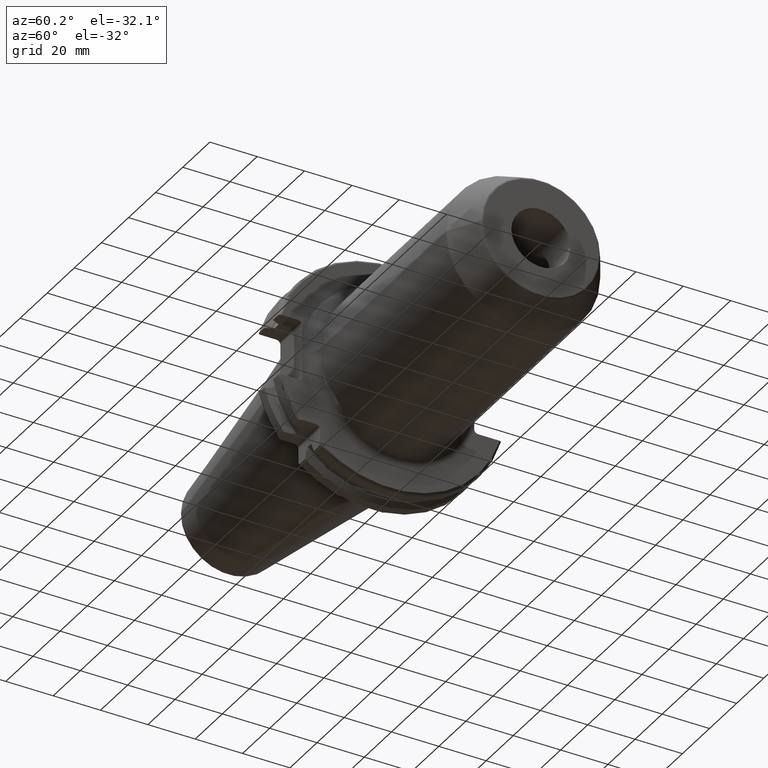
[diagram: clean part render]
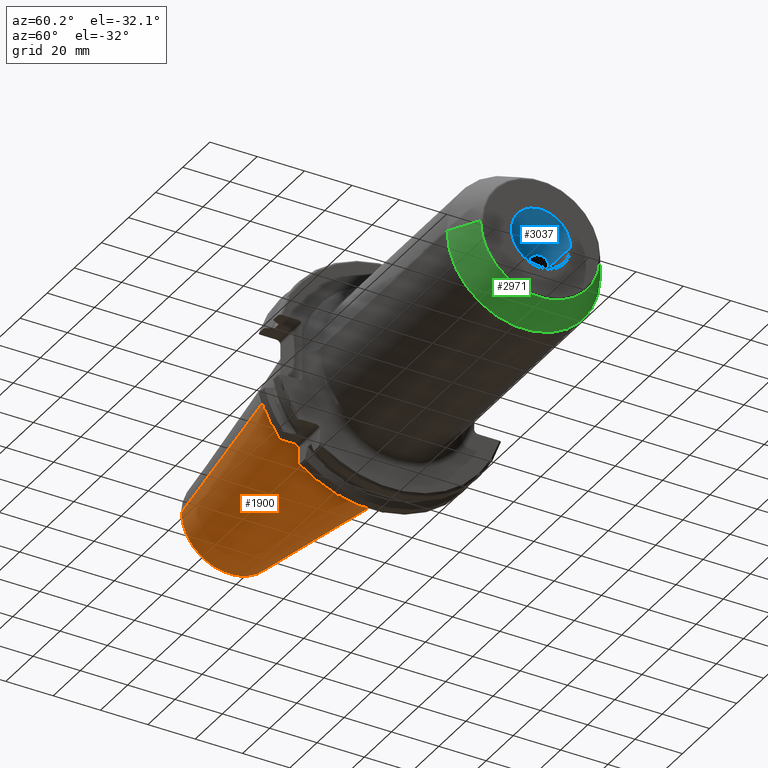
[diagram: same view with three faces highlighted in distinct colors, each labeled with its STEP entity id]
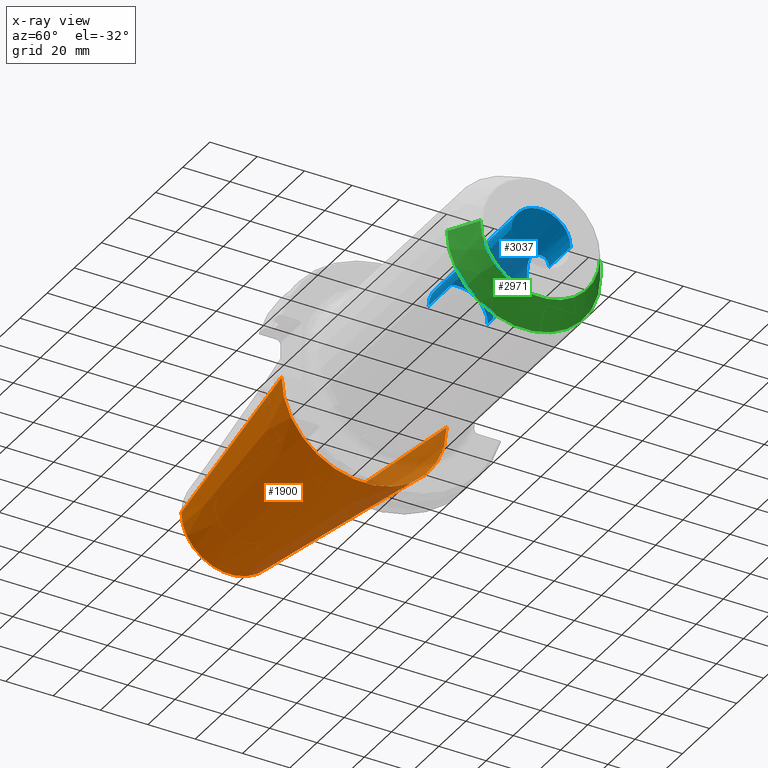
[diagram: x-ray of the same camera — body ghosted, the three highlighted faces saturated]
A machine part, auxiliary view with three faces highlighted in distinct colors.
The next image is the same camera in x-ray (body ghosted, the three faces saturated) — at least one of them is partly hidden behind the body in this view.
Their STEP definitions:

[orange] entity #1900 — the highlighted conical surface has half-angle 8.298 deg.
#32=CARTESIAN_POINT('',(-9.967471700563E1,0.E0,0.E0));
#33=DIRECTION('',(-1.E0,0.E0,0.E0));
#34=DIRECTION('',(0.E0,1.E0,0.E0));
#35=AXIS2_PLACEMENT_3D('',#32,#33,#34);
#47=DIRECTION('',(-9.895312636440E-1,-1.443186691705E-1,0.E0));
#48=VECTOR('',#47,1.002343617797E2);
#49=CARTESIAN_POINT('',(-4.896823332305E-1,3.485358204157E1,0.E0));
#50=LINE('',#49,#48);
#51=DIRECTION('',(-9.895312636440E-1,1.443186691705E-1,0.E0));
#52=VECTOR('',#51,1.002343617797E2);
#53=CARTESIAN_POINT('',(-4.896823332305E-1,-3.485358204157E1,0.E0));
#54=LINE('',#53,#52);
#55=CARTESIAN_POINT('',(-4.896823332305E-1,0.E0,0.E0));
#56=DIRECTION('',(-1.E0,0.E0,0.E0));
#57=DIRECTION('',(0.E0,1.E0,0.E0));
#58=AXIS2_PLACEMENT_3D('',#55,#56,#57);
#1550=CARTESIAN_POINT('',(-9.967471700563E1,2.038789234437E1,0.E0));
#1552=VERTEX_POINT('',#1550);
#1554=CARTESIAN_POINT('',(-9.967471700563E1,-2.038789234437E1,0.E0));
#1556=VERTEX_POINT('',#1554);
#1618=CARTESIAN_POINT('',(-4.896823332305E-1,3.485358204157E1,0.E0));
#1619=VERTEX_POINT('',#1618);
#1620=CARTESIAN_POINT('',(-4.896823332305E-1,-3.485358204157E1,0.E0));
#1621=VERTEX_POINT('',#1620);
#1888=CARTESIAN_POINT('',(-5.008219966943E1,0.E0,0.E0));
#1889=DIRECTION('',(1.E0,0.E0,0.E0));
#1890=DIRECTION('',(0.E0,-1.E0,0.E0));
#1891=AXIS2_PLACEMENT_3D('',#1888,#1889,#1890);
#1892=CONICAL_SURFACE('',#1891,2.762073719297E1,8.297826828206E0);
#1893=ORIENTED_EDGE('',*,*,#1878,.T.);
#1894=ORIENTED_EDGE('',*,*,#1855,.T.);
#1895=ORIENTED_EDGE('',*,*,#1882,.F.);
#1897=ORIENTED_EDGE('',*,*,#1896,.F.);
#1898=EDGE_LOOP('',(#1893,#1894,#1895,#1897));
#1899=FACE_OUTER_BOUND('',#1898,.F.);
#1900=ADVANCED_FACE('',(#1899),#1892,.T.);
#36=CIRCLE('',#35,2.038789234437E1);
#59=CIRCLE('',#58,3.485358204157E1);
#1855=EDGE_CURVE('',#1552,#1556,#36,.T.);
#1878=EDGE_CURVE('',#1619,#1552,#50,.T.);
#1882=EDGE_CURVE('',#1621,#1556,#54,.T.);
#1896=EDGE_CURVE('',#1619,#1621,#59,.T.);

[blue] entity #3037 — the highlighted cylindrical surface (edge-blend (fillet) strip) has radius 12.5 mm, axis along (1, 0, 0).
#1186=CARTESIAN_POINT('',(1.3E2,0.E0,0.E0));
#1187=DIRECTION('',(1.E0,0.E0,0.E0));
#1188=DIRECTION('',(0.E0,1.E0,0.E0));
#1189=AXIS2_PLACEMENT_3D('',#1186,#1187,#1188);
#1206=CARTESIAN_POINT('',(7.3E1,1.25E1,0.E0));
#1207=CARTESIAN_POINT('',(7.3E1,1.25E1,3.615096837713E-1));
#1208=CARTESIAN_POINT('',(7.304857774428E1,1.246881791250E1,1.086151339710E0));
#1209=CARTESIAN_POINT('',(7.327508730613E1,1.232505006200E1,2.177891233022E0));
#1210=CARTESIAN_POINT('',(7.365595029967E1,1.208888164842E1,3.241096397249E0));
#1211=CARTESIAN_POINT('',(7.420665984070E1,1.176059179188E1,4.281345753416E0));
#1212=CARTESIAN_POINT('',(7.493372823787E1,1.135304200667E1,5.264844145148E0));
#1213=CARTESIAN_POINT('',(7.582806891541E1,1.089807727043E1,6.145165584308E0));
#1214=CARTESIAN_POINT('',(7.681553310598E1,1.046251153118E1,6.853424122450E0));
#1215=CARTESIAN_POINT('',(7.786763175698E1,1.008586520363E1,7.390983795789E0));
#1216=CARTESIAN_POINT('',(7.891872872529E1,9.809701879924E0,7.749823513463E0));
#1217=CARTESIAN_POINT('',(7.996695264575E1,9.641526133638E0,7.956107040240E0));
#1218=CARTESIAN_POINT('',(8.100024934777E1,9.586284603744E0,8.021924692966E0));
#1219=CARTESIAN_POINT('',(8.203203640917E1,9.641453588282E0,7.956194187895E0));
#1220=CARTESIAN_POINT('',(8.308061114122E1,9.809541436309E0,7.750023683674E0));
#1221=CARTESIAN_POINT('',(8.413205639329E1,1.008574011951E1,7.391163915452E0));
#1222=CARTESIAN_POINT('',(8.518569741862E1,1.046296239364E1,6.852791566088E0));
#1223=CARTESIAN_POINT('',(8.617379662786E1,1.089898007936E1,6.143554828435E0));
#1224=CARTESIAN_POINT('',(8.706681882641E1,1.135335089933E1,5.264128297059E0));
#1225=CARTESIAN_POINT('',(8.779382355688E1,1.176086842134E1,4.280598253297E0));
#1226=CARTESIAN_POINT('',(8.834439164699E1,1.208909148253E1,3.240332499056E0));
#1227=CARTESIAN_POINT('',(8.872516065153E1,1.232520605344E1,2.176949889592E0));
#1228=CARTESIAN_POINT('',(8.895141397015E1,1.246881316117E1,1.085983622474E0));
#1229=CARTESIAN_POINT('',(8.9E1,1.25E1,3.614640526262E-1));
#1230=CARTESIAN_POINT('',(8.9E1,1.25E1,0.E0));
#1232=CARTESIAN_POINT('',(9.8E1,1.25E1,0.E0));
#1233=CARTESIAN_POINT('',(9.8E1,1.25E1,3.615096837713E-1));
#1234=CARTESIAN_POINT('',(9.804857774428E1,1.246881791250E1,1.086151339710E0));
#1235=CARTESIAN_POINT('',(9.827508730613E1,1.232505006200E1,2.177891233022E0));
#1236=CARTESIAN_POINT('',(9.865595029967E1,1.208888164842E1,3.241096397249E0));
#1237=CARTESIAN_POINT('',(9.920665984070E1,1.176059179188E1,4.281345753416E0));
#1238=CARTESIAN_POINT('',(9.993372823787E1,1.135304200667E1,5.264844145148E0));
#1239=CARTESIAN_POINT('',(1.008280689154E2,1.089807727043E1,6.145165584308E0));
#1240=CARTESIAN_POINT('',(1.018155331060E2,1.046251153118E1,6.853424122450E0));
#1241=CARTESIAN_POINT('',(1.028676317570E2,1.008586520363E1,7.390983795789E0));
#1242=CARTESIAN_POINT('',(1.039187287253E2,9.809701879924E0,7.749823513463E0));
#1243=CARTESIAN_POINT('',(1.049669526457E2,9.641526133638E0,7.956107040240E0));
#1244=CARTESIAN_POINT('',(1.060002493478E2,9.586284603744E0,8.021924692966E0));
#1245=CARTESIAN_POINT('',(1.070320364092E2,9.641453588282E0,7.956194187895E0));
#1246=CARTESIAN_POINT('',(1.080806111412E2,9.809541436309E0,7.750023683674E0));
#1247=CARTESIAN_POINT('',(1.091320563933E2,1.008574011951E1,7.391163915452E0));
#1248=CARTESIAN_POINT('',(1.101856974186E2,1.046296239364E1,6.852791566088E0));
#1249=CARTESIAN_POINT('',(1.111737966279E2,1.089898007936E1,6.143554828435E0));
#1250=CARTESIAN_POINT('',(1.120668188264E2,1.135335089933E1,5.264128297059E0));
#1251=CARTESIAN_POINT('',(1.127938235569E2,1.176086842134E1,4.280598253297E0));
#1252=CARTESIAN_POINT('',(1.133443916470E2,1.208909148253E1,3.240332499056E0));
#1253=CARTESIAN_POINT('',(1.137251606515E2,1.232520605344E1,2.176949889592E0));
#1254=CARTESIAN_POINT('',(1.139514139702E2,1.246881316117E1,1.085983622474E0));
#1255=CARTESIAN_POINT('',(1.14E2,1.25E1,3.614640526262E-1));
#1256=CARTESIAN_POINT('',(1.14E2,1.25E1,0.E0));
#1284=DIRECTION('',(-1.E0,0.E0,0.E0));
#1285=VECTOR('',#1284,9.E0);
#1286=CARTESIAN_POINT('',(9.8E1,1.25E1,0.E0));
#1287=LINE('',#1286,#1285);
#1314=DIRECTION('',(-1.E0,0.E0,0.E0));
#1315=VECTOR('',#1314,1.6E1);
#1316=CARTESIAN_POINT('',(1.3E2,1.25E1,0.E0));
#1317=LINE('',#1316,#1315);
#1318=DIRECTION('',(-1.E0,0.E0,0.E0));
#1319=VECTOR('',#1318,6.11E1);
#1320=CARTESIAN_POINT('',(1.3E2,-1.25E1,0.E0));
#1321=LINE('',#1320,#1319);
#1322=DIRECTION('',(-1.E0,0.E0,0.E0));
#1323=VECTOR('',#1322,4.1E0);
#1324=CARTESIAN_POINT('',(7.3E1,1.25E1,0.E0));
#1325=LINE('',#1324,#1323);
#1339=CARTESIAN_POINT('',(6.89E1,0.E0,0.E0));
#1340=DIRECTION('',(1.E0,0.E0,0.E0));
#1341=DIRECTION('',(0.E0,1.E0,0.E0));
#1342=AXIS2_PLACEMENT_3D('',#1339,#1340,#1341);
#1759=CARTESIAN_POINT('',(6.89E1,1.25E1,0.E0));
#1760=CARTESIAN_POINT('',(6.89E1,-1.25E1,0.E0));
#1761=VERTEX_POINT('',#1759);
#1762=VERTEX_POINT('',#1760);
#1763=CARTESIAN_POINT('',(1.3E2,-1.25E1,0.E0));
#1764=VERTEX_POINT('',#1763);
#1765=CARTESIAN_POINT('',(1.14E2,1.25E1,0.E0));
#1767=VERTEX_POINT('',#1765);
#1769=CARTESIAN_POINT('',(9.8E1,1.25E1,0.E0));
#1771=VERTEX_POINT('',#1769);
#1773=CARTESIAN_POINT('',(1.3E2,1.25E1,0.E0));
#1774=VERTEX_POINT('',#1773);
#1803=VERTEX_POINT('',#1206);
#1804=VERTEX_POINT('',#1230);
#3016=CARTESIAN_POINT('',(6.5845E1,0.E0,0.E0));
#3017=DIRECTION('',(1.E0,0.E0,0.E0));
#3018=DIRECTION('',(0.E0,-1.E0,0.E0));
#3019=AXIS2_PLACEMENT_3D('',#3016,#3017,#3018);
#3020=CYLINDRICAL_SURFACE('',#3019,1.25E1);
#3021=ORIENTED_EDGE('',*,*,#2877,.F.);
#3023=ORIENTED_EDGE('',*,*,#3022,.T.);
#3025=ORIENTED_EDGE('',*,*,#3024,.T.);
#3027=ORIENTED_EDGE('',*,*,#3026,.F.);
#3028=ORIENTED_EDGE('',*,*,#3009,.F.);
#3030=ORIENTED_EDGE('',*,*,#3029,.T.);
#3032=ORIENTED_EDGE('',*,*,#3031,.F.);
#3034=ORIENTED_EDGE('',*,*,#3033,.T.);
#3035=EDGE_LOOP('',(#3021,#3023,#3025,#3027,#3028,#3030,#3032,#3034));
#3036=FACE_OUTER_BOUND('',#3035,.F.);
#3037=ADVANCED_FACE('',(#3036),#3020,.F.);
#1190=CIRCLE('',#1189,1.25E1);
#1231=B_SPLINE_CURVE_WITH_KNOTS('',3,(#1206,#1207,#1208,#1209,#1210,#1211,#1212,
#1213,#1214,#1215,#1216,#1217,#1218,#1219,#1220,#1221,#1222,#1223,#1224,#1225,
#1226,#1227,#1228,#1229,#1230),.UNSPECIFIED.,.F.,.F.,(4,1,1,1,1,1,1,1,1,1,1,1,1,
1,1,1,1,1,1,1,1,1,4),(0.E0,4.545454545455E-2,9.090909090909E-2,
1.363636363636E-1,1.818181818182E-1,2.272727272727E-1,2.727272727273E-1,
3.181818181818E-1,3.636363636364E-1,4.090909090909E-1,4.545454545455E-1,5.E-1,
5.454545454545E-1,5.909090909091E-1,6.363636363636E-1,6.818181818182E-1,
7.272727272727E-1,7.727272727273E-1,8.181818181818E-1,8.636363636364E-1,
9.090909090909E-1,9.545454545455E-1,1.E0),.UNSPECIFIED.);
#1257=B_SPLINE_CURVE_WITH_KNOTS('',3,(#1232,#1233,#1234,#1235,#1236,#1237,#1238,
#1239,#1240,#1241,#1242,#1243,#1244,#1245,#1246,#1247,#1248,#1249,#1250,#1251,
#1252,#1253,#1254,#1255,#1256),.UNSPECIFIED.,.F.,.F.,(4,1,1,1,1,1,1,1,1,1,1,1,1,
1,1,1,1,1,1,1,1,1,4),(0.E0,4.545454545455E-2,9.090909090909E-2,
1.363636363636E-1,1.818181818182E-1,2.272727272727E-1,2.727272727273E-1,
3.181818181818E-1,3.636363636364E-1,4.090909090909E-1,4.545454545455E-1,5.E-1,
5.454545454545E-1,5.909090909091E-1,6.363636363636E-1,6.818181818182E-1,
7.272727272727E-1,7.727272727273E-1,8.181818181818E-1,8.636363636364E-1,
9.090909090909E-1,9.545454545455E-1,1.E0),.UNSPECIFIED.);
#1343=CIRCLE('',#1342,1.25E1);
#2877=EDGE_CURVE('',#1803,#1804,#1231,.T.);
#3009=EDGE_CURVE('',#1774,#1764,#1190,.T.);
#3022=EDGE_CURVE('',#1803,#1761,#1325,.T.);
#3024=EDGE_CURVE('',#1761,#1762,#1343,.T.);
#3026=EDGE_CURVE('',#1764,#1762,#1321,.T.);
#3029=EDGE_CURVE('',#1774,#1767,#1317,.T.);
#3031=EDGE_CURVE('',#1771,#1767,#1257,.T.);
#3033=EDGE_CURVE('',#1771,#1804,#1287,.T.);

[green] entity #2971 — the highlighted conical surface has half-angle 30 deg.
#1158=CARTESIAN_POINT('',(1.172320508076E2,0.E0,0.E0));
#1159=DIRECTION('',(-1.E0,0.E0,0.E0));
#1160=DIRECTION('',(0.E0,1.E0,0.E0));
#1161=AXIS2_PLACEMENT_3D('',#1158,#1159,#1160);
#1163=DIRECTION('',(-8.660254037844E-1,-5.E-1,1.598834714648E-13));
#1164=VECTOR('',#1163,1.416580753731E1);
#1165=CARTESIAN_POINT('',(1.295E2,-2.528312163513E1,6.521681337556E-13));
#1166=LINE('',#1165,#1164);
#1167=CARTESIAN_POINT('',(1.295E2,0.E0,0.E0));
#1168=DIRECTION('',(-1.E0,0.E0,0.E0));
#1169=DIRECTION('',(0.E0,1.E0,0.E0));
#1170=AXIS2_PLACEMENT_3D('',#1167,#1168,#1169);
#1172=DIRECTION('',(-8.660254037844E-1,5.E-1,-1.617444036542E-13));
#1173=VECTOR('',#1172,1.416580753731E1);
#1174=CARTESIAN_POINT('',(1.295E2,2.528312163513E1,-6.529422061052E-13));
#1175=LINE('',#1174,#1173);
#1789=CARTESIAN_POINT('',(1.172320508076E2,3.236602540378E1,0.E0));
#1790=CARTESIAN_POINT('',(1.172320508076E2,-3.236602540378E1,0.E0));
#1791=VERTEX_POINT('',#1789);
#1792=VERTEX_POINT('',#1790);
#1793=CARTESIAN_POINT('',(1.295E2,2.528312163513E1,0.E0));
#1794=CARTESIAN_POINT('',(1.295E2,-2.528312163513E1,0.E0));
#1795=VERTEX_POINT('',#1793);
#1796=VERTEX_POINT('',#1794);
#2959=CARTESIAN_POINT('',(1.233660254038E2,0.E0,0.E0));
#2960=DIRECTION('',(-1.E0,0.E0,0.E0));
#2961=DIRECTION('',(0.E0,1.E0,0.E0));
#2962=AXIS2_PLACEMENT_3D('',#2959,#2960,#2961);
#2963=CONICAL_SURFACE('',#2962,2.882457351946E1,3.E1);
#2964=ORIENTED_EDGE('',*,*,#2924,.T.);
#2965=ORIENTED_EDGE('',*,*,#2954,.F.);
#2967=ORIENTED_EDGE('',*,*,#2966,.F.);
#2968=ORIENTED_EDGE('',*,*,#2950,.T.);
#2969=EDGE_LOOP('',(#2964,#2965,#2967,#2968));
#2970=FACE_OUTER_BOUND('',#2969,.F.);
#2971=ADVANCED_FACE('',(#2970),#2963,.T.);
#1162=CIRCLE('',#1161,3.236602540378E1);
#1171=CIRCLE('',#1170,2.528312163513E1);
#2924=EDGE_CURVE('',#1791,#1792,#1162,.T.);
#2950=EDGE_CURVE('',#1795,#1791,#1175,.T.);
#2954=EDGE_CURVE('',#1796,#1792,#1166,.T.);
#2966=EDGE_CURVE('',#1795,#1796,#1171,.T.);